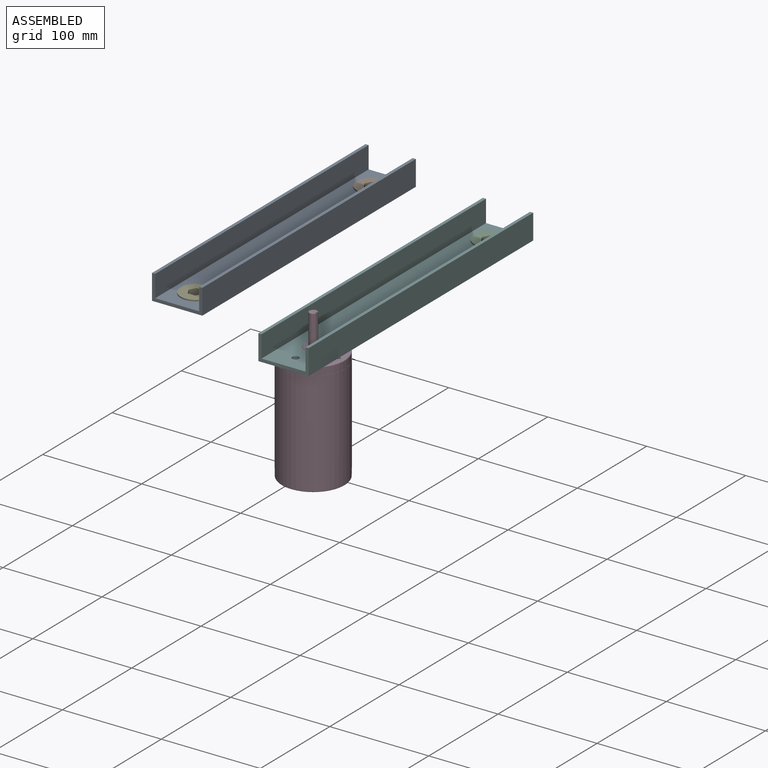
[diagram: assembled view]
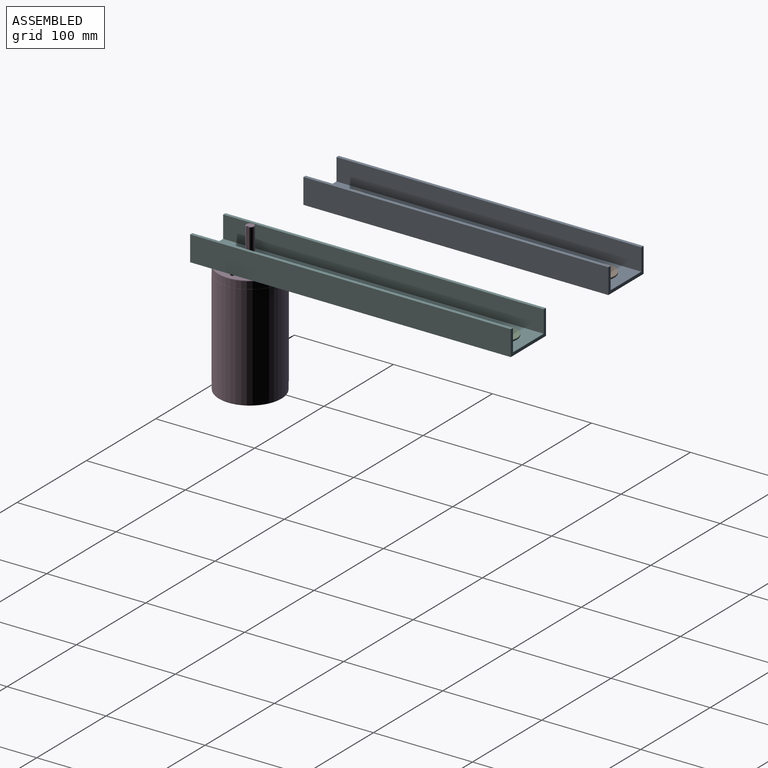
[diagram: assembled view, second angle]
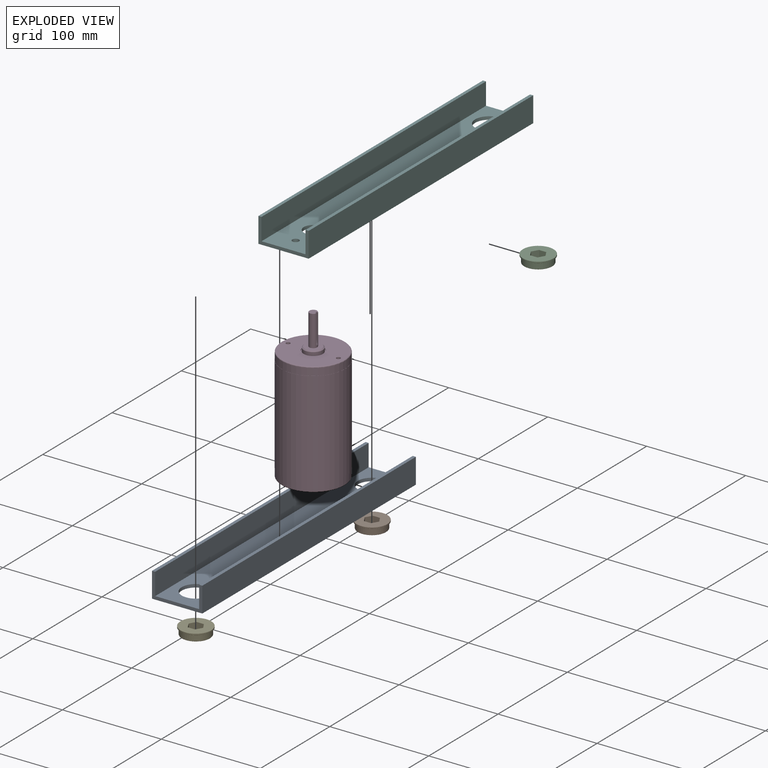
[diagram: exploded view]
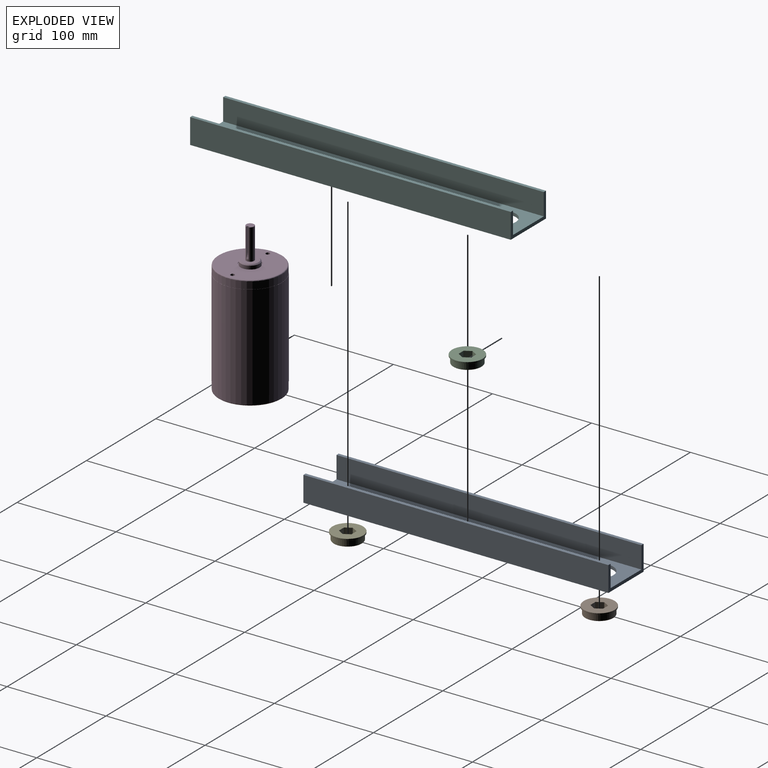
[diagram: exploded view, second angle]
ASSEMBLY  parts=6 mates=4
PART A: 14 faces, bbox 50.8x308x25.4 mm
  f0: plane 307.98x22.23mm, normal (1,0,0), area 6844.7mm2, adj f1,f7,f8,f9
  f1: plane 307.98x3.18mm, normal (0,0,1), area 977.8mm2, adj f0,f2,f8,f9
  f2: plane 307.98x25.4mm, normal (-1,0,0), area 7822.6mm2, adj f1,f3,f8,f9
  f3: plane 307.98x50.8mm, normal (0,0,-1), area 14290.8mm2, adj f2,f4,f8,f9,f10,f11,f12,f13
  f4: plane 307.98x25.4mm, normal (1,0,0), area 7822.6mm2, adj f3,f5,f8,f9
  f5: plane 307.98x3.18mm, normal (0,0,1), area 977.8mm2, adj f4,f6,f8,f9
  f6: plane 307.98x22.23mm, normal (-1,0,0), area 6844.7mm2, adj f5,f7,f8,f9
  f7: plane 307.98x44.45mm, normal (0,0,1), area 12335.2mm2, adj f0,f6,f8,f9,f10,f11,f12,f13
  f8: plane 50.8x25.4mm, normal (0,-1,0), area 302.4mm2, adj f0,f1,f2,f3,f4,f5,f6,f7
  f9: plane 50.8x25.4mm, normal (0,1,0), area 302.4mm2, adj f0,f1,f2,f3,f4,f5,f6,f7
  f10: cylinder r=14.29mm len=28.58mm, axis (0,0,-1), area 285mm2, adj f3,f7
  f11: cylinder r=14.29mm len=28.58mm, axis (0,0,-1), area 285mm2, adj f3,f7
  f12: cylinder r=3.38mm len=6.76mm, axis (0,0,-1), area 67.4mm2, adj f3,f7
  f13: cylinder r=3.38mm len=6.76mm, axis (0,0,-1), area 67.4mm2, adj f3,f7
PART B: 22 faces, bbox 31.1x31.1x7.9 mm
  f0: cylinder r=15.56mm len=31.12mm, axis (0,0,-1), area 124.1mm2, adj f13,f14
  f1: plane 30.86x30.86mm, normal (0,0,1), area 608.3mm2, adj f7,f8,f9,f10,f11,f12,f14,f16
  f2: plane 27.56x27.56mm, normal (0,0,-1), area 456.8mm2, adj f7,f8,f9,f10,f11,f12,f15,f16
  f3: cylinder r=14.29mm len=28.58mm, axis (0,0,-1), area 483.6mm2, adj f4,f15
  f4: plane 28.58x28.58mm, normal (0,0,1), area 28.2mm2, adj f3,f5
  f5: cylinder r=13.97mm len=27.94mm, axis (0,0,-1), area 44.6mm2, adj f4,f6
  f6: plane 30.86x30.86mm, normal (0,0,-1), area 134.9mm2, adj f5,f13
  f7: plane 7.93x6.15mm, normal (0.87,-0.5,0), area 56.3mm2, adj f1,f2,f20,f21
  f8: plane 7.93x6.15mm, normal (0.87,0.5,0), area 56.3mm2, adj f1,f2,f19,f20
  f9: plane 7.93x7.1mm, normal (0,1,0), area 56.3mm2, adj f1,f2,f18,f19
  f10: plane 7.93x6.15mm, normal (-0.87,0.5,0), area 56.3mm2, adj f1,f2,f17,f18
  f11: plane 7.93x6.15mm, normal (-0.87,-0.5,0), area 56.3mm2, adj f1,f2,f16,f17
  f12: plane 7.93x7.1mm, normal (0,-1,0), area 56.3mm2, adj f1,f2,f16,f21
  f13: cone r=15.43mm half-angle=45deg, axis (0,0,1), area 17.5mm2, adj f0,f6
  f14: cone r=15.56mm half-angle=45deg, axis (0,0,-1), area 17.5mm2, adj f0,f1
  f15: torus R=13.78mm, axis (0,0,-1), area 70.7mm2, adj f2,f3
  f16: cylinder r=0.2mm len=7.93mm, axis (0,0,1), area 1.7mm2, adj f1,f2,f11,f12
  f17: cylinder r=0.2mm len=7.93mm, axis (0,0,1), area 1.7mm2, adj f1,f2,f10,f11
  f18: cylinder r=0.2mm len=7.93mm, axis (0,0,1), area 1.7mm2, adj f1,f2,f9,f10
  f19: cylinder r=0.2mm len=7.93mm, axis (0,0,1), area 1.7mm2, adj f1,f2,f8,f9
  f20: cylinder r=0.2mm len=7.93mm, axis (0,0,1), area 1.7mm2, adj f1,f2,f7,f8
  f21: cylinder r=0.2mm len=7.93mm, axis (0,0,1), area 1.7mm2, adj f1,f2,f7,f12
PART C: same geometry as B
PART D: 34 faces, bbox 64x64x155 mm
  f0: plane 7.54x7.36mm, normal (0,0,1), area 42.2mm2, adj f1,f2,f3,f4
  f1: plane 24.11x2mm, normal (1,0,0), area 48.2mm2, adj f0,f2,f4,f5
  f2: plane 29.25x1.1mm, normal (0,1,0), area 29.5mm2, adj f0,f1,f3,f5,f6
  f3: revolved ~7.99x7.87mm, area 9mm2, adj f0,f2,f4,f6
  f4: plane 29.25x1.1mm, normal (0,-1,0), area 29.5mm2, adj f0,f1,f3,f5,f6
  f5: cylinder r=12.7mm len=5.39mm, axis (0,1,0), area 10.9mm2, adj f1,f2,f4,f6
  f6: cylinder r=4mm len=31.25mm, axis (0,0,1), area 726.7mm2, adj f2,f3,f4,f5,f7
  f7: plane 17.02x17.02mm, normal (0,0,1), area 177.2mm2, adj f6,f8
  f8: cone r=9.53mm half-angle=45deg, axis (0,0,-1), area 81.4mm2, adj f7,f12
  f9: plane 4.24x4.24mm, normal (0,0,-1), area 14.1mm2, adj f13
  f10: plane 28.07x28.07mm, normal (0,0,-1), area 618.3mm2, adj f14
  f11: plane 4.24x4.24mm, normal (0,0,-1), area 14.1mm2, adj f15
  f12: cylinder r=9.53mm len=19.05mm, axis (0,0,1), area 212.8mm2, adj f8,f18
  f13: cone r=4.32mm half-angle=45deg, axis (0,0,1), area 62.9mm2, adj f9,f19
  f14: revolved ~30.07x30.07mm, area 144.8mm2, adj f10,f20
  f15: cone r=4.32mm half-angle=45deg, axis (0,0,1), area 62.9mm2, adj f11,f21
  f16: cone r=2.02mm half-angle=59deg, axis (0,0,1), area 14.9mm2, adj f22
  f17: cone r=2.02mm half-angle=59deg, axis (0,0,1), area 14.9mm2, adj f23
  f18: plane 21.06x21.06mm, normal (0,0,1), area 63.2mm2, adj f12,f24
  f19: cylinder r=4.32mm len=8.64mm, axis (0,0,-1), area 1.3mm2, adj f13,f25
  f20: cylinder r=15.04mm len=30.07mm, axis (0,0,1), area 355.5mm2, adj f14,f25
  f21: cylinder r=4.32mm len=8.64mm, axis (0,0,-1), area 1.3mm2, adj f15,f25
  f22: cylinder r=2.02mm len=13.61mm, axis (0,0,-1), area 172.7mm2, adj f16,f26
  f23: cylinder r=2.02mm len=13.61mm, axis (0,0,-1), area 172.7mm2, adj f17,f26
  f24: cylinder r=10.53mm len=21.06mm, axis (0,0,1), area 33.6mm2, adj f18,f26
  f25: plane 61.75x61.75mm, normal (0,0,-1), area 2164.2mm2, adj f19,f20,f21,f27
  f26: plane 61.75x61.75mm, normal (0,0,1), area 2614.2mm2, adj f22,f23,f24,f28
  f27: revolved ~63.75x63.75mm, area 311mm2, adj f25,f29
  f28: revolved ~63.75x63.75mm, area 311mm2, adj f26,f30
  f29: cylinder r=31.88mm len=63.75mm, axis (0,0,1), area 1448mm2, adj f27,f31
  f30: cylinder r=31.88mm len=63.75mm, axis (0,0,1), area 1448mm2, adj f28,f32
  f31: plane 64.01x64.01mm, normal (0,0,-1), area 25.5mm2, adj f29,f33
  f32: plane 64.01x64.01mm, normal (0,0,1), area 25.5mm2, adj f30,f33
  f33: cylinder r=32mm len=98.15mm, axis (0,0,1), area 19735.8mm2, adj f31,f32
PART E: same geometry as B
PART F: 16 faces, bbox 50.8x323.9x25.4 mm
  f0: plane 323.85x22.23mm, normal (1,0,0), area 7197.6mm2, adj f1,f7,f8,f9
  f1: plane 323.85x3.18mm, normal (0,0,1), area 1028.2mm2, adj f0,f2,f8,f9
  f2: plane 323.85x25.4mm, normal (-1,0,0), area 8225.8mm2, adj f1,f3,f8,f9
  f3: plane 323.85x50.8mm, normal (0,0,-1), area 15381.8mm2, adj f2,f4,f8,f9,f10,f11,f12,f13
  f4: plane 323.85x25.4mm, normal (1,0,0), area 8225.8mm2, adj f3,f5,f8,f9
  f5: plane 323.85x3.18mm, normal (0,0,1), area 1028.2mm2, adj f4,f6,f8,f9
  f6: plane 323.85x22.23mm, normal (-1,0,0), area 7197.6mm2, adj f5,f7,f8,f9
  f7: plane 323.85x44.45mm, normal (0,0,1), area 13325.4mm2, adj f0,f6,f8,f9,f10,f11,f12,f13
  f8: plane 50.8x25.4mm, normal (0,-1,0), area 302.4mm2, adj f0,f1,f2,f3,f4,f5,f6,f7
  f9: plane 50.8x25.4mm, normal (0,1,0), area 302.4mm2, adj f0,f1,f2,f3,f4,f5,f6,f7
  f10: cylinder r=14.29mm len=28.58mm, axis (0,0,-1), area 285mm2, adj f3,f7
  f11: cylinder r=9.53mm len=19.05mm, axis (0,0,-1), area 190mm2, adj f3,f7
  f12: cylinder r=3.38mm len=6.76mm, axis (0,0,-1), area 67.4mm2, adj f3,f7
  f13: cylinder r=3.38mm len=6.76mm, axis (0,0,-1), area 67.4mm2, adj f3,f7
  f14: cylinder r=3.38mm len=6.76mm, axis (0,0,-1), area 67.4mm2, adj f3,f7
  f15: cylinder r=3.38mm len=6.76mm, axis (0,0,-1), area 67.4mm2, adj f3,f7
PLACE A t=(32.36,254.43,3.68)mm
PLACE B t=(13.4,227.45,-2.09)mm
PLACE C t=(139.26,217,-13.44)mm
PLACE D t=(103.7,-146.3,-29.26)mm
PLACE E t=(13.4,-26.55,-2.09)mm
PLACE F t=(158.22,243.98,-7.67)mm
MATE fastened B.f0 <-> A.f10  axis (0,0,-1) through (13.4,227.45,4.32)mm
MATE fastened E.f0 <-> A.f11  axis (0,0,-1) through (13.4,-26.55,4.32)mm
MATE fastened D.f6 <-> F.f11  axis (0,0,1) through (139.26,-37,-10.21)mm
MATE fastened C.f0 <-> F.f10  axis (0,0,-1) through (139.26,217,-7.04)mm
